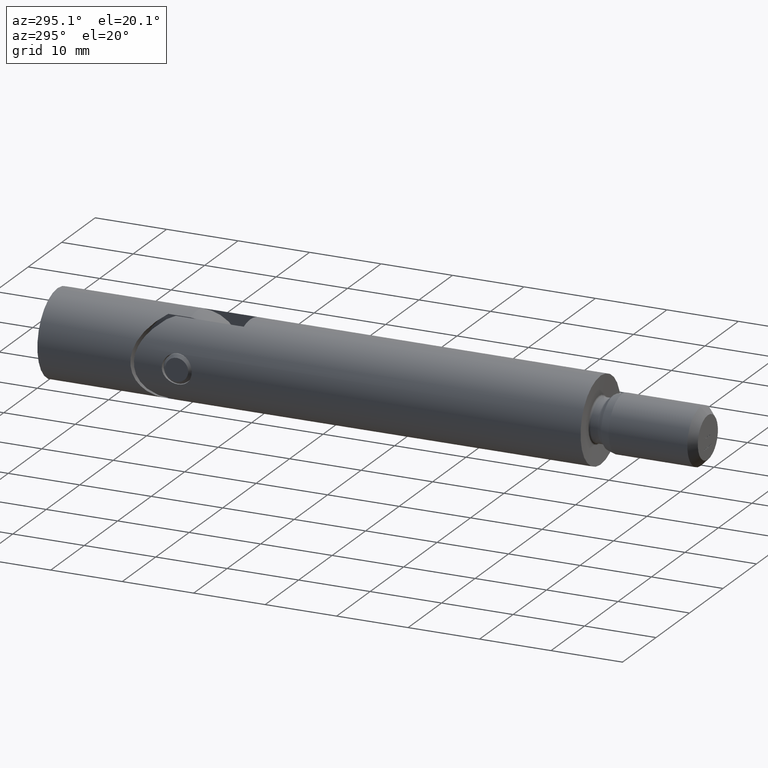
[diagram: clean part render]
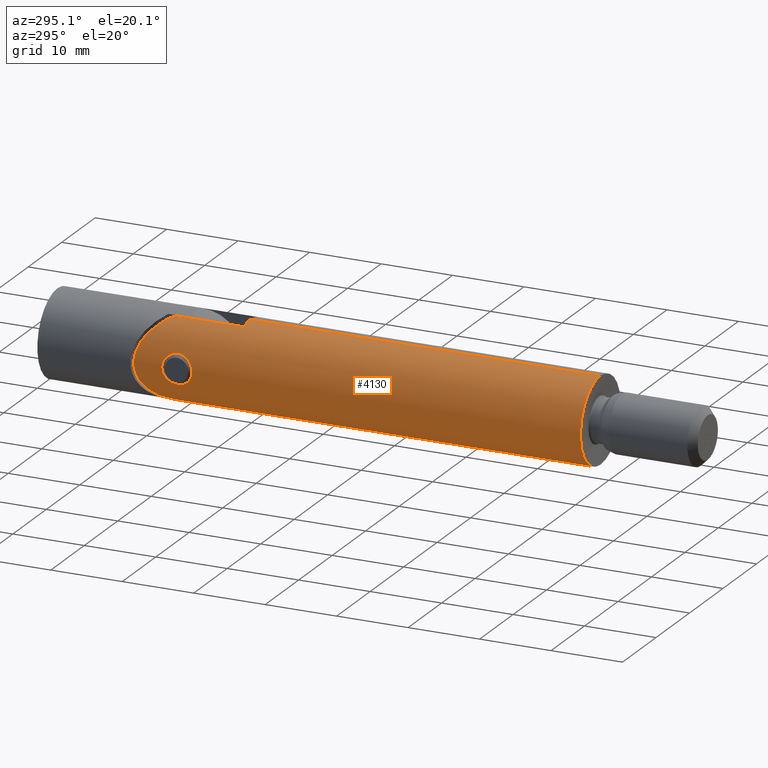
[diagram: same view with one face highlighted and labeled with its STEP entity id]
A machine part, auxiliary view. The second image highlights one B-rep face of the part: STEP entity #4130.
In plain terms, the highlighted cylindrical surface (partial cylindrical patch) has radius 6 mm, axis along (-0, -1, -0).
Its self-contained STEP definition (entity closure, byte-faithful):
#12 = CARTESIAN_POINT ( 'NONE',  ( -5.620498198558560300, 56.50000000000000000, -2.099999999999997900 ) ) ;
#30 = EDGE_CURVE ( 'NONE', #3057, #3430, #7972, .T. ) ;
#48 = AXIS2_PLACEMENT_3D ( 'NONE', #11286, #15028, #12425 ) ;
#70 = CIRCLE ( 'NONE', #2795, 6.000000000000000000 ) ;
#126 = DIRECTION ( 'NONE',  ( -0.0000000000000000000, -1.000000000000000000, -0.0000000000000000000 ) ) ;
#161 = CARTESIAN_POINT ( 'NONE',  ( -5.962715114661268200, 54.50839780526701600, -0.6800801230086553900 ) ) ;
#237 = CARTESIAN_POINT ( 'NONE',  ( -5.838037621275254300, 58.08160775682836900, -1.388285207797514100 ) ) ;
#388 = CARTESIAN_POINT ( 'NONE',  ( -5.763929221111575400, 55.20870411764906300, 1.678203787176818500 ) ) ;
#600 = EDGE_CURVE ( 'NONE', #10484, #6974, #11598, .T. ) ;
#748 = EDGE_CURVE ( 'NONE', #6974, #10803, #4686, .T. ) ;
#947 = ORIENTED_EDGE ( 'NONE', *, *, #8654, .F. ) ;
#1222 = VECTOR ( 'NONE', #5758, 1000.000000000000000 ) ;
#1225 = CARTESIAN_POINT ( 'NONE',  ( 0.0000000000000000000, 0.0000000000000000000, -6.000000000000000000 ) ) ;
#1289 = CARTESIAN_POINT ( 'NONE',  ( -5.837952037965275800, 54.91875066540580300, -1.388593641144569800 ) ) ;
#1310 = CARTESIAN_POINT ( 'NONE',  ( -5.625781867251824100, 56.77852156291793800, 2.086004142918095500 ) ) ;
#1501 = CARTESIAN_POINT ( 'NONE',  ( -5.837540727900168300, 54.92027755686596200, 1.390298620594288000 ) ) ;
#1802 = CYLINDRICAL_SURFACE ( 'NONE', #13033, 6.000000000000000000 ) ;
#1933 = ORIENTED_EDGE ( 'NONE', *, *, #11437, .F. ) ;
#2380 = CARTESIAN_POINT ( 'NONE',  ( -5.620498198558558500, 56.63818259910951300, 2.099999999999998300 ) ) ;
#2416 = CARTESIAN_POINT ( 'NONE',  ( -8.400000000000003900, 64.90000000000000600, -3.394112549695431600 ) ) ;
#2532 = CARTESIAN_POINT ( 'NONE',  ( -1.999999999999994900, 49.00000000000000000, -5.656854249492383200 ) ) ;
#2580 = CARTESIAN_POINT ( 'NONE',  ( -5.928169472606107600, 54.61434333469892300, -0.9344983768752140900 ) ) ;
#2600 = CARTESIAN_POINT ( 'NONE',  ( -5.962677525624286500, 58.49147996667532800, 0.6802471252429984600 ) ) ;
#2606 = LINE ( 'NONE', #11099, #4030 ) ;
#2608 = FACE_BOUND ( 'NONE', #4548, .T. ) ;
#2642 = CARTESIAN_POINT ( 'NONE',  ( -5.645478622638375300, 55.95244496225078000, -2.032094543523542500 ) ) ;
#2729 = VERTEX_POINT ( 'NONE', #15784 ) ;
#2751 = CARTESIAN_POINT ( 'NONE',  ( -5.995080300904067600, 54.41394285642914500, 0.2780669828899040600 ) ) ;
#2756 = LINE ( 'NONE', #3915, #5828 ) ;
#2795 = AXIS2_PLACEMENT_3D ( 'NONE', #3049, #16040, #2876 ) ;
#2866 = VERTEX_POINT ( 'NONE', #8850 ) ;
#2876 = DIRECTION ( 'NONE',  ( 3.552713678800500900E-015, 0.0000000000000000000, -1.000000000000000000 ) ) ;
#3049 = CARTESIAN_POINT ( 'NONE',  ( 0.0000000000000000000, 49.00000000000000000, 0.0000000000000000000 ) ) ;
#3057 = VERTEX_POINT ( 'NONE', #13493 ) ;
#3161 = ORIENTED_EDGE ( 'NONE', *, *, #30, .F. ) ;
#3344 = CARTESIAN_POINT ( 'NONE',  ( -1.999999999999994900, 49.00000000000000000, 5.656854249492382400 ) ) ;
#3430 = VERTEX_POINT ( 'NONE', #8997 ) ;
#3591 = CARTESIAN_POINT ( 'NONE',  ( -2.000000000000001800, 58.49999999999998600, 5.656854249492383200 ) ) ;
#3706 = B_SPLINE_CURVE_WITH_KNOTS ( 'NONE', 3,
 ( #7571, #2380, #1310, #5449, #14544, #7810, #15765, #13012, #11707, #5405, #5235, #14493, #14320, #2600, #10445, #14430, #3975, #13234, #5350, #6668, #8036, #3916, #6561, #11878, #237, #6722, #7866, #10550, #9310, #4081, #15554, #12 ),
 .UNSPECIFIED., .F., .F.,
 ( 4, 2, 2, 2, 2, 2, 2, 2, 2, 2, 2, 2, 2, 2, 2, 4 ),
 ( 0.003310281943627766600, 0.003723783287161924900, 0.004137284630696083700, 0.004550785974230242400, 0.004964287317764401100, 0.005377788661298559000, 0.005791290004832717700, 0.006204791348366876400, 0.006618292691901034300, 0.007031794035435193900, 0.007445295378969351800, 0.007858796722503509600, 0.008272298066037669200, 0.009099300753106000600, 0.009512802096640163600, 0.009926303440174330200 ),
 .UNSPECIFIED. ) ;
#3893 = ORIENTED_EDGE ( 'NONE', *, *, #600, .F. ) ;
#3894 = CARTESIAN_POINT ( 'NONE',  ( -5.976603443468830400, 54.46765439806852500, -0.5463276017293977600 ) ) ;
#3915 = CARTESIAN_POINT ( 'NONE',  ( -1.999999999999988000, 0.0000000000000000000, 5.656854249492383200 ) ) ;
#3916 = CARTESIAN_POINT ( 'NONE',  ( -5.928249260235523900, 58.38590259350865400, -0.9339302335878955100 ) ) ;
#3953 = CARTESIAN_POINT ( 'NONE',  ( -5.764168584868916600, 55.20759862384905900, -1.677458111682770300 ) ) ;
#3975 = CARTESIAN_POINT ( 'NONE',  ( -5.999997743938847000, 58.59999355411097400, 0.1378962311059598300 ) ) ;
#4030 = VECTOR ( 'NONE', #15111, 1000.000000000000000 ) ;
#4081 = CARTESIAN_POINT ( 'NONE',  ( -5.625795980467914100, 56.77869132548531900, -2.085965302855730100 ) ) ;
#4130 = ADVANCED_FACE ( 'NONE', ( #16417, #2608 ), #1802, .T. ) ;
#4273 = DIRECTION ( 'NONE',  ( 0.0000000000000000000, 0.0000000000000000000, -1.000000000000000000 ) ) ;
#4548 = EDGE_LOOP ( 'NONE', ( #3161, #9020 ) ) ;
#4686 = LINE ( 'NONE', #9657, #1222 ) ;
#5100 = CARTESIAN_POINT ( 'NONE',  ( -5.907720082623312900, 54.67889976516684700, -1.054609195336374500 ) ) ;
#5235 = CARTESIAN_POINT ( 'NONE',  ( -5.862452653236940300, 58.16841902219340500, 1.282583721497231500 ) ) ;
#5350 = CARTESIAN_POINT ( 'NONE',  ( -5.995169204955465700, 58.58631520761827700, -0.2767230104375633100 ) ) ;
#5405 = CARTESIAN_POINT ( 'NONE',  ( -5.838224257470955100, 58.08226138163523400, 1.387466646468438400 ) ) ;
#5449 = CARTESIAN_POINT ( 'NONE',  ( -5.645611933878260700, 57.04871372413989400, 2.031723601827334600 ) ) ;
#5599 = CARTESIAN_POINT ( 'NONE',  ( -5.620498198558559400, 56.50000000000000000, 2.099999999999997900 ) ) ;
#5700 = DIRECTION ( 'NONE',  ( -0.0000000000000000000, -1.000000000000000000, -0.0000000000000000000 ) ) ;
#5758 = DIRECTION ( 'NONE',  ( 0.0000000000000000000, 1.000000000000000000, 0.0000000000000000000 ) ) ;
#5828 = VECTOR ( 'NONE', #126, 1000.000000000000000 ) ;
#6561 = CARTESIAN_POINT ( 'NONE',  ( -5.907349047084647300, 58.31990064533370300, -1.056674272657333300 ) ) ;
#6668 = CARTESIAN_POINT ( 'NONE',  ( -5.976384177844209900, 58.53170499597739300, -0.5490551696918509700 ) ) ;
#6701 = CARTESIAN_POINT ( 'NONE',  ( -5.660162091007509700, 55.81953959195838200, 1.991391499470348300 ) ) ;
#6722 = CARTESIAN_POINT ( 'NONE',  ( -5.763703522977153600, 57.79053384958203300, -1.679225429083058200 ) ) ;
#6974 = VERTEX_POINT ( 'NONE', #2532 ) ;
#7000 = EDGE_CURVE ( 'NONE', #10484, #10246, #16777, .T. ) ;
#7081 = DIRECTION ( 'NONE',  ( 0.0000000000000000000, 0.0000000000000000000, -1.000000000000000000 ) ) ;
#7131 = CARTESIAN_POINT ( 'NONE',  ( 0.0000000000000000000, 0.0000000000000000000, 0.0000000000000000000 ) ) ;
#7321 = EDGE_CURVE ( 'NONE', #10803, #12302, #12668, .T. ) ;
#7371 = CARTESIAN_POINT ( 'NONE',  ( -8.400000000000003900, 64.90000000000000600, 3.394112549695431600 ) ) ;
#7380 = CARTESIAN_POINT ( 'NONE',  ( -2.000000000000001800, 58.49999999999998600, -5.656854249492383200 ) ) ;
#7551 = CARTESIAN_POINT ( 'NONE',  ( -2.000000000000001800, 58.49999999999998600, -5.656854249492383200 ) ) ;
#7560 = ORIENTED_EDGE ( 'NONE', *, *, #7000, .T. ) ;
#7571 = CARTESIAN_POINT ( 'NONE',  ( -5.620498198558559400, 56.50000000000000000, 2.099999999999997900 ) ) ;
#7721 = CARTESIAN_POINT ( 'NONE',  ( -5.927938647929243700, 54.61506867348949600, 0.9359241278680667800 ) ) ;
#7810 = CARTESIAN_POINT ( 'NONE',  ( -5.696446081631194100, 57.43567785857451500, 1.885117660815331100 ) ) ;
#7844 = CARTESIAN_POINT ( 'NONE',  ( -5.620498198558560300, 56.50000000000000000, -2.099999999999997900 ) ) ;
#7866 = CARTESIAN_POINT ( 'NONE',  ( -5.714319927810799400, 57.56162059137255200, -1.832784263819107600 ) ) ;
#7972 = B_SPLINE_CURVE_WITH_KNOTS ( 'NONE', 3,
 ( #7844, #14232, #12936, #2642, #15531, #15696, #3953, #1289, #10421, #5100, #2580, #161, #3894, #9287, #13051, #15644, #2751, #12877, #15471, #7721, #14701, #14637, #1501, #388, #9343, #6701, #10634, #8069, #11912, #5599 ),
 .UNSPECIFIED., .F., .F.,
 ( 4, 2, 2, 2, 2, 2, 2, 2, 2, 2, 2, 2, 2, 2, 4 ),
 ( 0.009926303440174330200, 0.01034000155381836200, 0.01075369966746239500, 0.01158109589475045900, 0.01199479400839448400, 0.01240849212203851000, 0.01282219023568253300, 0.01323588834932656000, 0.01364958646297058400, 0.01406328457661460900, 0.01447698269025863400, 0.01489068080390266000, 0.01571807703119072400, 0.01613177514483476300, 0.01654547325847880600 ),
 .UNSPECIFIED. ) ;
#8036 = CARTESIAN_POINT ( 'NONE',  ( -5.962668401260810200, 58.49145769829886600, -0.6804046658411574400 ) ) ;
#8069 = CARTESIAN_POINT ( 'NONE',  ( -5.625604928585572000, 56.22471688162674000, 2.086480899654179000 ) ) ;
#8235 = CARTESIAN_POINT ( 'NONE',  ( 0.0000000000000000000, 0.0000000000000000000, 0.0000000000000000000 ) ) ;
#8654 = EDGE_CURVE ( 'NONE', #2729, #2866, #2606, .T. ) ;
#8689 = AXIS2_PLACEMENT_3D ( 'NONE', #7131, #5700, #4273 ) ;
#8850 = CARTESIAN_POINT ( 'NONE',  ( 7.347880794884140400E-016, 0.0000000000000000000, 6.000000000000017800 ) ) ;
#8997 = CARTESIAN_POINT ( 'NONE',  ( -5.620498198558559400, 56.50000000000000000, 2.099999999999997900 ) ) ;
#9020 = ORIENTED_EDGE ( 'NONE', *, *, #16527, .F. ) ;
#9287 = CARTESIAN_POINT ( 'NONE',  ( -5.995140323154942100, 54.41377196368061000, -0.2766858770818040300 ) ) ;
#9310 = CARTESIAN_POINT ( 'NONE',  ( -5.645587623752952300, 57.04840501321952900, -2.031790353627667600 ) ) ;
#9343 = CARTESIAN_POINT ( 'NONE',  ( -5.713921088319643200, 55.44110430859373700, 1.833959050530054000 ) ) ;
#9640 = VERTEX_POINT ( 'NONE', #3344 ) ;
#9657 = CARTESIAN_POINT ( 'NONE',  ( -1.999999999999988000, 0.0000000000000000000, -5.656854249492383200 ) ) ;
#9869 = CARTESIAN_POINT ( 'NONE',  ( 0.0000000000000000000, 0.0000000000000000000, -6.000000000000017800 ) ) ;
#9913 = ORIENTED_EDGE ( 'NONE', *, *, #7321, .F. ) ;
#10246 = VERTEX_POINT ( 'NONE', #9869 ) ;
#10359 = DIRECTION ( 'NONE',  ( -0.0000000000000000000, -1.000000000000000000, -0.0000000000000000000 ) ) ;
#10421 = CARTESIAN_POINT ( 'NONE',  ( -5.862724745092866600, 54.83063157828996700, -1.281333560317006600 ) ) ;
#10445 = CARTESIAN_POINT ( 'NONE',  ( -5.976372872051161500, 58.53167171735686500, 0.5491609702495839900 ) ) ;
#10484 = VERTEX_POINT ( 'NONE', #13789 ) ;
#10550 = CARTESIAN_POINT ( 'NONE',  ( -5.660019611935006800, 57.17949872564379600, -1.991812137547297200 ) ) ;
#10634 = CARTESIAN_POINT ( 'NONE',  ( -5.645421476435037000, 55.95306889891963900, 2.032252373735616800 ) ) ;
#10803 = VERTEX_POINT ( 'NONE', #7380 ) ;
#11037 = EDGE_CURVE ( 'NONE', #2866, #10246, #16181, .T. ) ;
#11099 = CARTESIAN_POINT ( 'NONE',  ( 7.347880794884119700E-016, 0.0000000000000000000, 6.000000000000000000 ) ) ;
#11286 = CARTESIAN_POINT ( 'NONE',  ( 0.0000000000000000000, 49.00000000000000000, 0.0000000000000000000 ) ) ;
#11437 = EDGE_CURVE ( 'NONE', #12302, #9640, #2756, .T. ) ;
#11598 = CIRCLE ( 'NONE', #48, 6.000000000000000000 ) ;
#11707 = CARTESIAN_POINT ( 'NONE',  ( -5.788940475945235400, 57.88943169437328600, 1.580536093086023700 ) ) ;
#11878 = CARTESIAN_POINT ( 'NONE',  ( -5.862318593190556400, 58.16794630694811700, -1.283181200968928700 ) ) ;
#11912 = CARTESIAN_POINT ( 'NONE',  ( -5.620498198558561100, 56.36175164486422800, 2.099999999999997900 ) ) ;
#12033 = EDGE_LOOP ( 'NONE', ( #947, #13487, #1933, #9913, #12894, #3893, #7560, #16186 ) ) ;
#12302 = VERTEX_POINT ( 'NONE', #3591 ) ;
#12425 = DIRECTION ( 'NONE',  ( 0.0000000000000000000, 0.0000000000000000000, -1.000000000000000000 ) ) ;
#12668 =( BOUNDED_CURVE ( )  B_SPLINE_CURVE ( 3, ( #7551, #2416, #7371, #13620 ),
 .UNSPECIFIED., .F., .T. ) 
 B_SPLINE_CURVE_WITH_KNOTS ( ( 4, 4 ),
 ( 1.910633236249017700, 4.372552070930568700 ),
 .UNSPECIFIED. ) 
 CURVE ( )  GEOMETRIC_REPRESENTATION_ITEM ( )  RATIONAL_B_SPLINE_CURVE ( ( 1.000000000000000000, 0.5555555555555549100, 0.5555555555555549100, 1.000000000000000000 ) ) 
 REPRESENTATION_ITEM ( '' )  );
#12877 = CARTESIAN_POINT ( 'NONE',  ( -5.976449921149211700, 54.46810427138606800, 0.5480468969505022400 ) ) ;
#12894 = ORIENTED_EDGE ( 'NONE', *, *, #748, .F. ) ;
#12936 = CARTESIAN_POINT ( 'NONE',  ( -5.625618407553039500, 56.22437324495388800, -2.086445457011867800 ) ) ;
#12942 = VECTOR ( 'NONE', #10359, 1000.000000000000000 ) ;
#13012 = CARTESIAN_POINT ( 'NONE',  ( -5.763925473279283700, 57.78261313566978400, 1.668365807610793700 ) ) ;
#13033 = AXIS2_PLACEMENT_3D ( 'NONE', #8235, #15971, #7081 ) ;
#13051 = CARTESIAN_POINT ( 'NONE',  ( -6.000016460065305400, 54.39995297123966400, -0.1392474826808682300 ) ) ;
#13234 = CARTESIAN_POINT ( 'NONE',  ( -6.000002254454003900, 58.60000644129717500, -0.1376998343186873200 ) ) ;
#13487 = ORIENTED_EDGE ( 'NONE', *, *, #16149, .F. ) ;
#13493 = CARTESIAN_POINT ( 'NONE',  ( -5.620498198558560300, 56.50000000000000000, -2.099999999999997900 ) ) ;
#13620 = CARTESIAN_POINT ( 'NONE',  ( -2.000000000000001800, 58.49999999999998600, 5.656854249492383200 ) ) ;
#13789 = CARTESIAN_POINT ( 'NONE',  ( 0.0000000000000000000, 49.00000000000000000, -6.000000000000000000 ) ) ;
#14232 = CARTESIAN_POINT ( 'NONE',  ( -5.620498198558559400, 56.36156894489717200, -2.099999999999997900 ) ) ;
#14320 = CARTESIAN_POINT ( 'NONE',  ( -5.928393587962532700, 58.38635089972135700, 0.9329570687824229000 ) ) ;
#14430 = CARTESIAN_POINT ( 'NONE',  ( -5.995156318445021200, 58.58627815592981800, 0.2769678581410980300 ) ) ;
#14493 = CARTESIAN_POINT ( 'NONE',  ( -5.907519136521538700, 58.32045413854351100, 1.055741334667899000 ) ) ;
#14544 = CARTESIAN_POINT ( 'NONE',  ( -5.660087281002362600, 57.18013463568613000, 1.991627105530687600 ) ) ;
#14637 = CARTESIAN_POINT ( 'NONE',  ( -5.862239191083373800, 54.83231993120942600, 1.283587027436759800 ) ) ;
#14701 = CARTESIAN_POINT ( 'NONE',  ( -5.907453746167702100, 54.67974775333794200, 1.056141196700028500 ) ) ;
#15028 = DIRECTION ( 'NONE',  ( -0.0000000000000000000, 1.000000000000000000, -0.0000000000000000000 ) ) ;
#15111 = DIRECTION ( 'NONE',  ( -0.0000000000000000000, -1.000000000000000000, -0.0000000000000000000 ) ) ;
#15471 = CARTESIAN_POINT ( 'NONE',  ( -5.962483552965972300, 54.50909075760915100, 0.6820560588023940600 ) ) ;
#15531 = CARTESIAN_POINT ( 'NONE',  ( -5.660222913700023300, 55.81897953759362700, -1.991224222956958600 ) ) ;
#15554 = CARTESIAN_POINT ( 'NONE',  ( -5.620498198558557600, 56.63836521217769600, -2.099999999999997400 ) ) ;
#15644 = CARTESIAN_POINT ( 'NONE',  ( -5.999983456521259300, 54.40004726708449600, 0.1406623757754012800 ) ) ;
#15696 = CARTESIAN_POINT ( 'NONE',  ( -5.714166841873415900, 55.43963947332459700, -1.833217569928807800 ) ) ;
#15765 = CARTESIAN_POINT ( 'NONE',  ( -5.717846763310853400, 57.55642378001410700, 1.820030142832322000 ) ) ;
#15784 = CARTESIAN_POINT ( 'NONE',  ( 7.347880794884119700E-016, 49.00000000000000000, 6.000000000000000000 ) ) ;
#15971 = DIRECTION ( 'NONE',  ( -0.0000000000000000000, -1.000000000000000000, -0.0000000000000000000 ) ) ;
#16040 = DIRECTION ( 'NONE',  ( -0.0000000000000000000, 1.000000000000000000, -0.0000000000000000000 ) ) ;
#16149 = EDGE_CURVE ( 'NONE', #9640, #2729, #70, .T. ) ;
#16181 = CIRCLE ( 'NONE', #8689, 6.000000000000000000 ) ;
#16186 = ORIENTED_EDGE ( 'NONE', *, *, #11037, .F. ) ;
#16417 = FACE_OUTER_BOUND ( 'NONE', #12033, .T. ) ;
#16527 = EDGE_CURVE ( 'NONE', #3430, #3057, #3706, .T. ) ;
#16777 = LINE ( 'NONE', #1225, #12942 ) ;